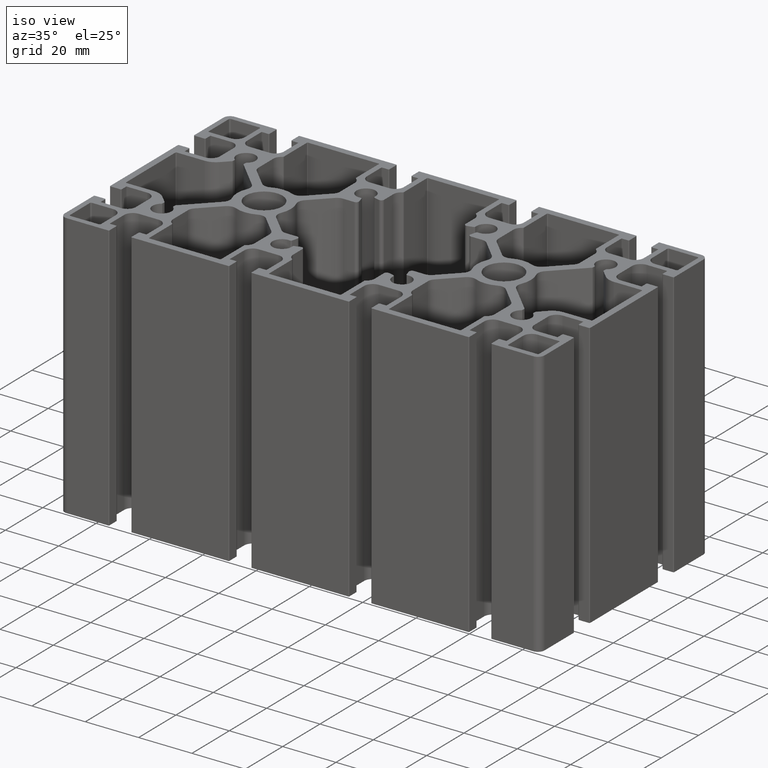
[diagram: clean part render]
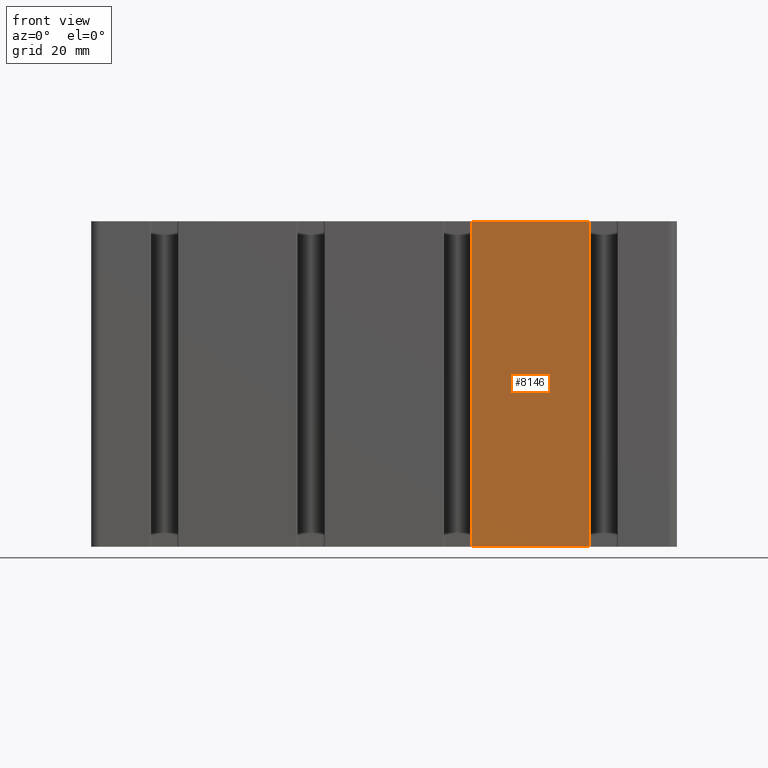
[diagram: tour spotlight — one face highlighted and labeled with its STEP entity id]
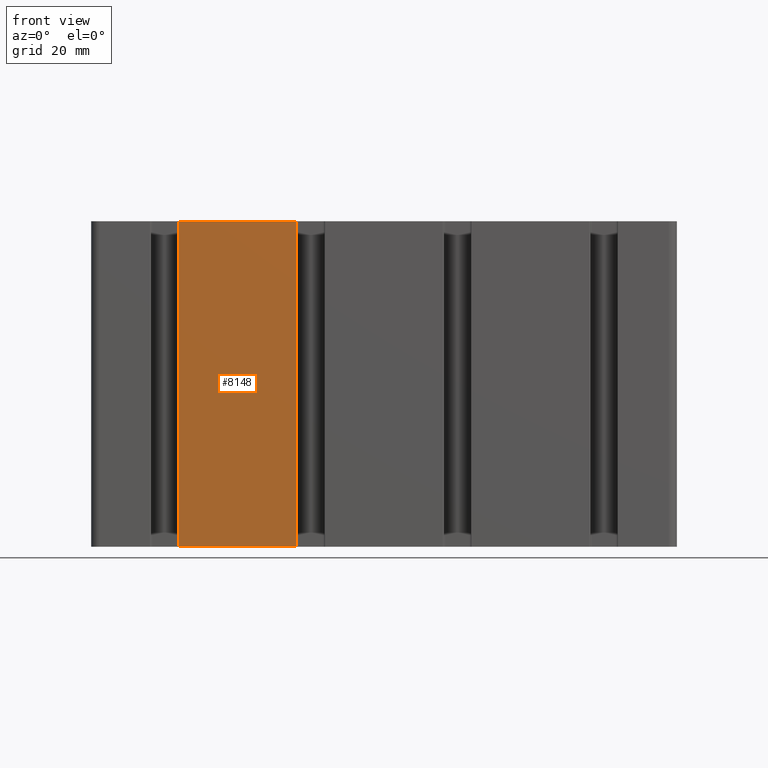
[diagram: tour spotlight — one face highlighted and labeled with its STEP entity id]
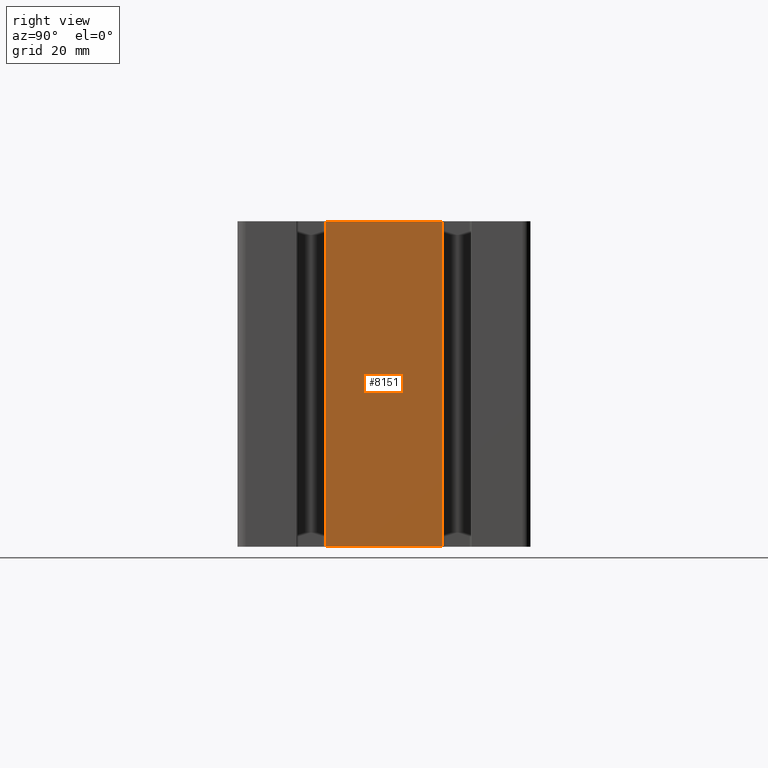
[diagram: tour spotlight — one face highlighted and labeled with its STEP entity id]
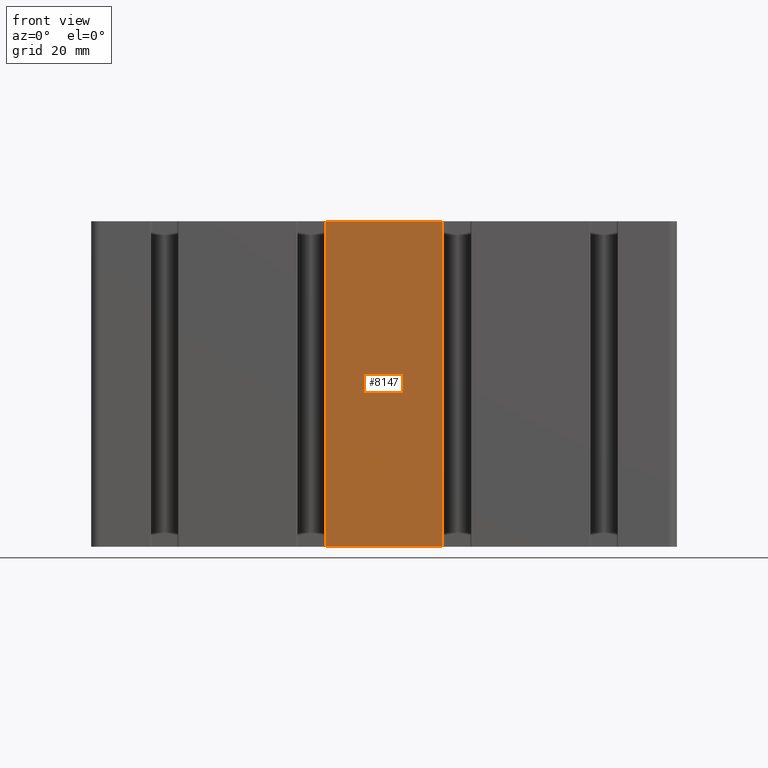
[diagram: tour spotlight — one face highlighted and labeled with its STEP entity id]
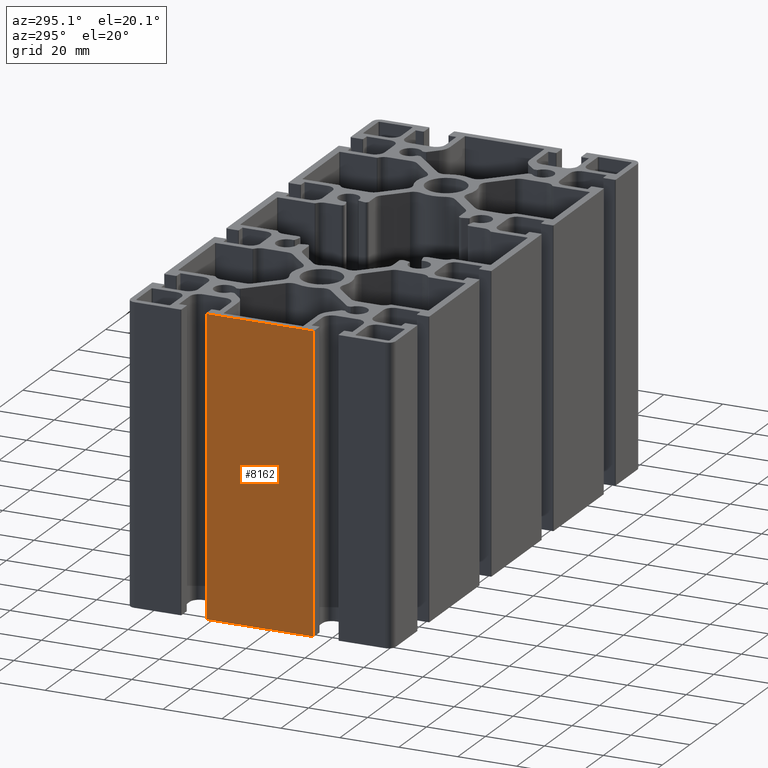
[diagram: tour spotlight — one face highlighted and labeled with its STEP entity id]
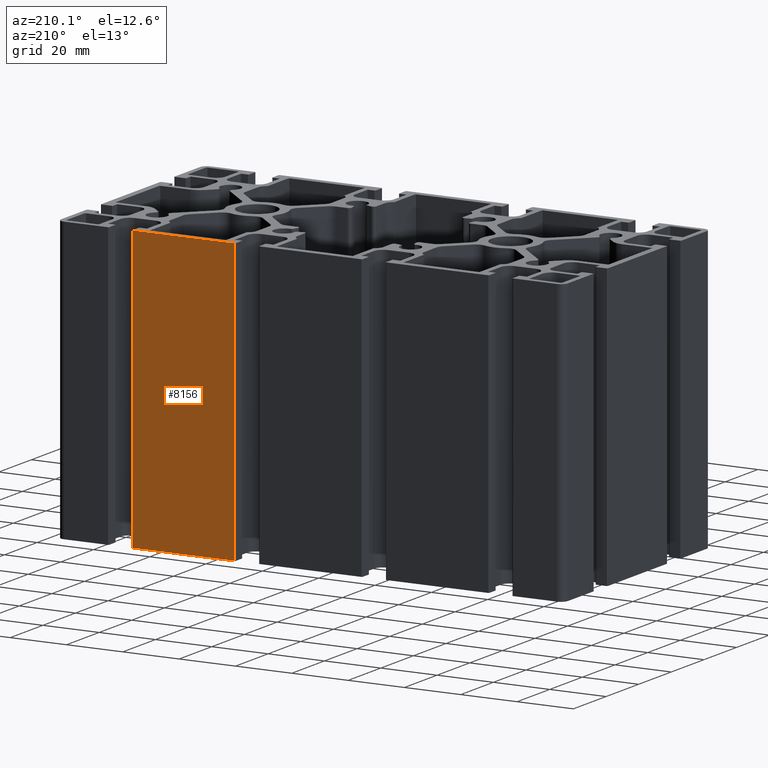
[diagram: tour spotlight — one face highlighted and labeled with its STEP entity id]
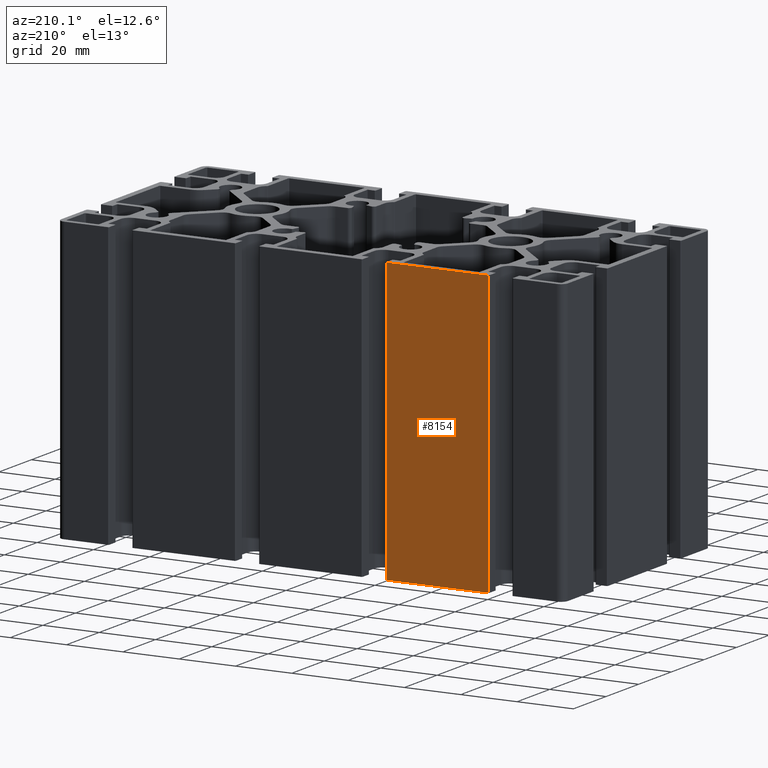
[diagram: tour spotlight — one face highlighted and labeled with its STEP entity id]
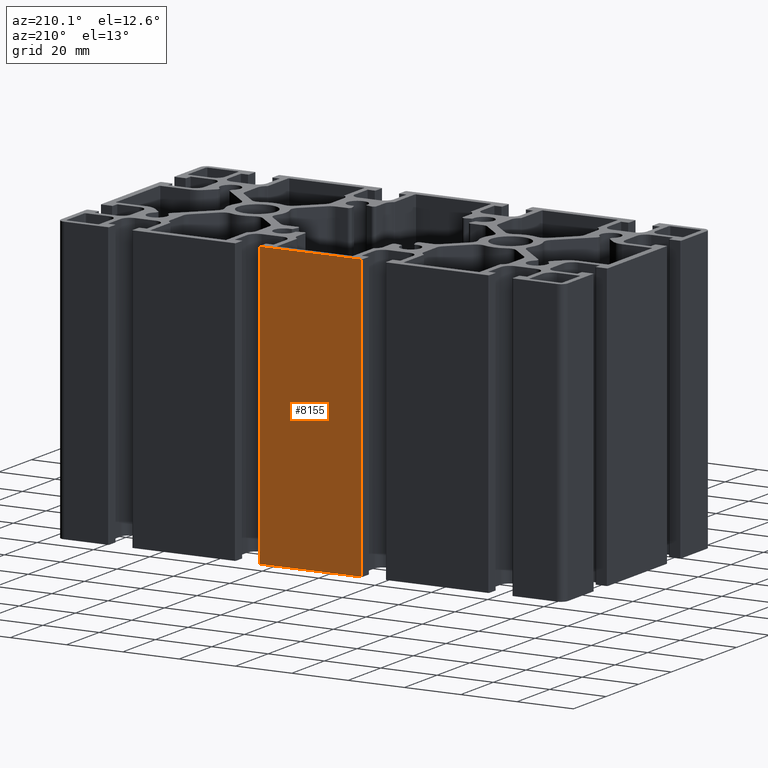
[diagram: tour spotlight — one face highlighted and labeled with its STEP entity id]
A machine part: a face-by-face anatomy tour. The part has 408 B-rep faces; the first image is the clean iso view, then the 8 largest visible faces are spotlighted one at a time (largest first), each with its STEP entity span.

Face 1 — front view, entity #8146. In plain terms, the highlighted planar face has unit normal (0, -1, 0).
Definition (entity closure, byte-faithful):
#1072=FACE_OUTER_BOUND('',#1482,.T.);
#1482=EDGE_LOOP('',(#6677,#6678,#6679,#6680));
#1751=LINE('',#12178,#2539);
#1773=LINE('',#12238,#2561);
#2280=LINE('',#13825,#3068);
#2281=LINE('',#13826,#3069);
#2539=VECTOR('',#9721,100.);
#2561=VECTOR('',#9777,100.);
#3068=VECTOR('',#11374,36.1);
#3069=VECTOR('',#11375,36.1);
#3344=VERTEX_POINT('',#12172);
#3346=VERTEX_POINT('',#12176);
#3365=VERTEX_POINT('',#12234);
#3367=VERTEX_POINT('',#12237);
#4269=EDGE_CURVE('',#3344,#3346,#1751,.T.);
#4298=EDGE_CURVE('',#3365,#3367,#1773,.T.);
#5088=EDGE_CURVE('',#3367,#3346,#2280,.T.);
#5089=EDGE_CURVE('',#3365,#3344,#2281,.T.);
#6677=ORIENTED_EDGE('',*,*,#4269,.T.);
#6678=ORIENTED_EDGE('',*,*,#5088,.F.);
#6679=ORIENTED_EDGE('',*,*,#4298,.F.);
#6680=ORIENTED_EDGE('',*,*,#5089,.T.);
#7742=PLANE('',#8976);
#8146=ADVANCED_FACE('',(#1072),#7742,.T.);
#8976=AXIS2_PLACEMENT_3D('',#13824,#11372,#11373);
#9721=DIRECTION('',(0.,0.,-1.));
#9777=DIRECTION('',(0.,0.,-1.));
#11372=DIRECTION('center_axis',(0.,-1.,0.));
#11373=DIRECTION('ref_axis',(1.,0.,0.));
#11374=DIRECTION('',(-1.,0.,0.));
#11375=DIRECTION('',(-1.,0.,0.));
#12172=CARTESIAN_POINT('',(26.9500000000001,-45.,100.));
#12176=CARTESIAN_POINT('',(26.9500000000001,-45.,0.));
#12178=CARTESIAN_POINT('',(26.95,-45.,0.));
#12234=CARTESIAN_POINT('',(63.0500000000001,-44.9999999999999,100.));
#12237=CARTESIAN_POINT('',(63.0500000000001,-44.9999999999999,0.));
#12238=CARTESIAN_POINT('',(63.05,-45.,0.));
#13824=CARTESIAN_POINT('Origin',(-87.5,-45.,0.));
#13825=CARTESIAN_POINT('',(-43.75,-45.,0.));
#13826=CARTESIAN_POINT('',(-43.75,-45.,100.));

Face 2 — front view, entity #8148. In plain terms, the highlighted planar face has unit normal (0, -1, 0).
Definition (entity closure, byte-faithful):
#1074=FACE_OUTER_BOUND('',#1484,.T.);
#1484=EDGE_LOOP('',(#6685,#6686,#6687,#6688));
#1695=LINE('',#12016,#2483);
#1717=LINE('',#12076,#2505);
#2284=LINE('',#13831,#3072);
#2285=LINE('',#13832,#3073);
#2483=VECTOR('',#9565,100.);
#2505=VECTOR('',#9621,100.);
#3072=VECTOR('',#11382,36.1000000000001);
#3073=VECTOR('',#11383,36.1000000000001);
#3288=VERTEX_POINT('',#12010);
#3290=VERTEX_POINT('',#12014);
#3309=VERTEX_POINT('',#12072);
#3311=VERTEX_POINT('',#12075);
#4189=EDGE_CURVE('',#3288,#3290,#1695,.T.);
#4218=EDGE_CURVE('',#3309,#3311,#1717,.T.);
#5092=EDGE_CURVE('',#3311,#3290,#2284,.T.);
#5093=EDGE_CURVE('',#3309,#3288,#2285,.T.);
#6685=ORIENTED_EDGE('',*,*,#4189,.T.);
#6686=ORIENTED_EDGE('',*,*,#5092,.F.);
#6687=ORIENTED_EDGE('',*,*,#4218,.F.);
#6688=ORIENTED_EDGE('',*,*,#5093,.T.);
#7744=PLANE('',#8978);
#8148=ADVANCED_FACE('',(#1074),#7744,.T.);
#8978=AXIS2_PLACEMENT_3D('',#13830,#11380,#11381);
#9565=DIRECTION('',(0.,0.,-1.));
#9621=DIRECTION('',(0.,0.,-1.));
#11380=DIRECTION('center_axis',(0.,-1.,0.));
#11381=DIRECTION('ref_axis',(1.,0.,0.));
#11382=DIRECTION('',(-1.,0.,0.));
#11383=DIRECTION('',(-1.,0.,0.));
#12010=CARTESIAN_POINT('',(-63.0500000000001,-45.,100.));
#12014=CARTESIAN_POINT('',(-63.0500000000001,-45.,0.));
#12016=CARTESIAN_POINT('',(-63.05,-45.,0.));
#12072=CARTESIAN_POINT('',(-26.9499999999999,-45.,100.));
#12075=CARTESIAN_POINT('',(-26.9499999999999,-45.,0.));
#12076=CARTESIAN_POINT('',(-26.95,-45.,0.));
#13830=CARTESIAN_POINT('Origin',(-87.5,-45.,0.));
#13831=CARTESIAN_POINT('',(-43.75,-45.,0.));
#13832=CARTESIAN_POINT('',(-43.75,-45.,100.));

Face 3 — right view, entity #8151. In plain terms, the highlighted planar face has unit normal (1, 0, 0).
Definition (entity closure, byte-faithful):
#1077=FACE_OUTER_BOUND('',#1487,.T.);
#1487=EDGE_LOOP('',(#6697,#6698,#6699,#6700));
#1807=LINE('',#12340,#2595);
#1829=LINE('',#12400,#2617);
#2292=LINE('',#13846,#3080);
#2293=LINE('',#13847,#3081);
#2595=VECTOR('',#9877,100.);
#2617=VECTOR('',#9933,100.);
#3080=VECTOR('',#11396,36.1);
#3081=VECTOR('',#11397,36.1);
#3400=VERTEX_POINT('',#12334);
#3402=VERTEX_POINT('',#12338);
#3421=VERTEX_POINT('',#12396);
#3423=VERTEX_POINT('',#12399);
#4349=EDGE_CURVE('',#3400,#3402,#1807,.T.);
#4378=EDGE_CURVE('',#3421,#3423,#1829,.T.);
#5100=EDGE_CURVE('',#3423,#3402,#2292,.T.);
#5101=EDGE_CURVE('',#3421,#3400,#2293,.T.);
#6697=ORIENTED_EDGE('',*,*,#4349,.T.);
#6698=ORIENTED_EDGE('',*,*,#5100,.F.);
#6699=ORIENTED_EDGE('',*,*,#4378,.F.);
#6700=ORIENTED_EDGE('',*,*,#5101,.T.);
#7747=PLANE('',#8981);
#8151=ADVANCED_FACE('',(#1077),#7747,.T.);
#8981=AXIS2_PLACEMENT_3D('',#13845,#11394,#11395);
#9877=DIRECTION('',(0.,0.,-1.));
#9933=DIRECTION('',(0.,0.,-1.));
#11394=DIRECTION('center_axis',(1.,0.,0.));
#11395=DIRECTION('ref_axis',(0.,1.,0.));
#11396=DIRECTION('',(0.,-1.,0.));
#11397=DIRECTION('',(0.,-1.,0.));
#12334=CARTESIAN_POINT('',(90.,-18.05,100.));
#12338=CARTESIAN_POINT('',(90.,-18.05,0.));
#12340=CARTESIAN_POINT('',(90.,-18.05,0.));
#12396=CARTESIAN_POINT('',(90.,18.05,100.));
#12399=CARTESIAN_POINT('',(90.,18.05,0.));
#12400=CARTESIAN_POINT('',(90.,18.05,0.));
#13845=CARTESIAN_POINT('Origin',(90.,-42.5,0.));
#13846=CARTESIAN_POINT('',(90.,-21.25,0.));
#13847=CARTESIAN_POINT('',(90.,-21.25,100.));

Face 4 — front view, entity #8147. In plain terms, the highlighted planar face has unit normal (0, -1, 0).
Definition (entity closure, byte-faithful):
#1073=FACE_OUTER_BOUND('',#1483,.T.);
#1483=EDGE_LOOP('',(#6681,#6682,#6683,#6684));
#1716=LINE('',#12070,#2504);
#1749=LINE('',#12168,#2537);
#2282=LINE('',#13828,#3070);
#2283=LINE('',#13829,#3071);
#2504=VECTOR('',#9616,100.);
#2537=VECTOR('',#9711,100.);
#3070=VECTOR('',#11378,36.0999999999999);
#3071=VECTOR('',#11379,36.0999999999999);
#3307=VERTEX_POINT('',#12066);
#3308=VERTEX_POINT('',#12068);
#3341=VERTEX_POINT('',#12165);
#3342=VERTEX_POINT('',#12167);
#4216=EDGE_CURVE('',#3307,#3308,#1716,.T.);
#4264=EDGE_CURVE('',#3341,#3342,#1749,.T.);
#5090=EDGE_CURVE('',#3342,#3308,#2282,.T.);
#5091=EDGE_CURVE('',#3341,#3307,#2283,.T.);
#6681=ORIENTED_EDGE('',*,*,#4216,.T.);
#6682=ORIENTED_EDGE('',*,*,#5090,.F.);
#6683=ORIENTED_EDGE('',*,*,#4264,.F.);
#6684=ORIENTED_EDGE('',*,*,#5091,.T.);
#7743=PLANE('',#8977);
#8147=ADVANCED_FACE('',(#1073),#7743,.T.);
#8977=AXIS2_PLACEMENT_3D('',#13827,#11376,#11377);
#9616=DIRECTION('',(0.,0.,-1.));
#9711=DIRECTION('',(0.,0.,-1.));
#11376=DIRECTION('center_axis',(0.,-1.,0.));
#11377=DIRECTION('ref_axis',(1.,0.,0.));
#11378=DIRECTION('',(-1.,0.,0.));
#11379=DIRECTION('',(-1.,0.,0.));
#12066=CARTESIAN_POINT('',(-18.0499999999999,-45.,100.));
#12068=CARTESIAN_POINT('',(-18.0499999999999,-45.,0.));
#12070=CARTESIAN_POINT('',(-18.05,-45.,0.));
#12165=CARTESIAN_POINT('',(18.0499999999999,-44.9999999999999,100.));
#12167=CARTESIAN_POINT('',(18.0499999999999,-44.9999999999999,0.));
#12168=CARTESIAN_POINT('',(18.05,-45.,0.));
#13827=CARTESIAN_POINT('Origin',(-87.5,-45.,0.));
#13828=CARTESIAN_POINT('',(-43.75,-45.,0.));
#13829=CARTESIAN_POINT('',(-43.75,-45.,100.));

Face 5 — auxiliary view, entity #8162. In plain terms, the highlighted planar face has unit normal (-1, 0, 0).
Definition (entity closure, byte-faithful):
#1088=FACE_OUTER_BOUND('',#1511,.T.);
#1511=EDGE_LOOP('',(#7143,#7144,#7145,#7146));
#1672=LINE('',#11944,#2460);
#1975=LINE('',#12826,#2763);
#2315=LINE('',#13892,#3103);
#2316=LINE('',#13896,#3104);
#2460=VECTOR('',#9494,100.);
#2763=VECTOR('',#10345,100.);
#3103=VECTOR('',#11445,36.1);
#3104=VECTOR('',#11452,36.1);
#3263=VERTEX_POINT('',#11940);
#3265=VERTEX_POINT('',#11943);
#3568=VERTEX_POINT('',#12820);
#3570=VERTEX_POINT('',#12824);
#4153=EDGE_CURVE('',#3263,#3265,#1672,.T.);
#4589=EDGE_CURVE('',#3568,#3570,#1975,.T.);
#5127=EDGE_CURVE('',#3263,#3568,#2315,.T.);
#5129=EDGE_CURVE('',#3265,#3570,#2316,.T.);
#7143=ORIENTED_EDGE('',*,*,#4153,.F.);
#7144=ORIENTED_EDGE('',*,*,#5127,.T.);
#7145=ORIENTED_EDGE('',*,*,#4589,.T.);
#7146=ORIENTED_EDGE('',*,*,#5129,.F.);
#7757=PLANE('',#8997);
#8162=ADVANCED_FACE('',(#1088),#7757,.T.);
#8997=AXIS2_PLACEMENT_3D('',#13895,#11450,#11451);
#9494=DIRECTION('',(0.,0.,-1.));
#10345=DIRECTION('',(0.,0.,-1.));
#11445=DIRECTION('',(0.,1.,0.));
#11450=DIRECTION('center_axis',(-1.,0.,0.));
#11451=DIRECTION('ref_axis',(0.,-1.,0.));
#11452=DIRECTION('',(0.,1.,0.));
#11940=CARTESIAN_POINT('',(-89.9999999999999,-18.05,100.));
#11943=CARTESIAN_POINT('',(-89.9999999999999,-18.05,0.));
#11944=CARTESIAN_POINT('',(-90.,-18.05,0.));
#12820=CARTESIAN_POINT('',(-90.,18.05,100.));
#12824=CARTESIAN_POINT('',(-90.,18.05,0.));
#12826=CARTESIAN_POINT('',(-90.,18.05,0.));
#13892=CARTESIAN_POINT('',(-90.,21.25,100.));
#13895=CARTESIAN_POINT('Origin',(-90.,42.5,0.));
#13896=CARTESIAN_POINT('',(-90.,21.25,0.));

Face 6 — auxiliary view, entity #8156. In plain terms, the highlighted planar face has unit normal (0, 1, 0).
Definition (entity closure, byte-faithful):
#1082=FACE_OUTER_BOUND('',#1492,.T.);
#1492=EDGE_LOOP('',(#6717,#6718,#6719,#6720));
#1863=LINE('',#12502,#2651);
#1885=LINE('',#12562,#2673);
#2304=LINE('',#13867,#3092);
#2305=LINE('',#13868,#3093);
#2651=VECTOR('',#10033,100.);
#2673=VECTOR('',#10089,100.);
#3092=VECTOR('',#11418,36.1);
#3093=VECTOR('',#11419,36.1);
#3456=VERTEX_POINT('',#12496);
#3458=VERTEX_POINT('',#12500);
#3477=VERTEX_POINT('',#12558);
#3479=VERTEX_POINT('',#12561);
#4429=EDGE_CURVE('',#3456,#3458,#1863,.T.);
#4458=EDGE_CURVE('',#3477,#3479,#1885,.T.);
#5112=EDGE_CURVE('',#3479,#3458,#2304,.T.);
#5113=EDGE_CURVE('',#3477,#3456,#2305,.T.);
#6717=ORIENTED_EDGE('',*,*,#4429,.T.);
#6718=ORIENTED_EDGE('',*,*,#5112,.F.);
#6719=ORIENTED_EDGE('',*,*,#4458,.F.);
#6720=ORIENTED_EDGE('',*,*,#5113,.T.);
#7752=PLANE('',#8986);
#8156=ADVANCED_FACE('',(#1082),#7752,.T.);
#8986=AXIS2_PLACEMENT_3D('',#13866,#11416,#11417);
#10033=DIRECTION('',(0.,0.,-1.));
#10089=DIRECTION('',(0.,0.,-1.));
#11416=DIRECTION('center_axis',(0.,1.,0.));
#11417=DIRECTION('ref_axis',(-1.,0.,0.));
#11418=DIRECTION('',(1.,0.,0.));
#11419=DIRECTION('',(1.,0.,0.));
#12496=CARTESIAN_POINT('',(63.0500000000001,45.,100.));
#12500=CARTESIAN_POINT('',(63.0500000000001,45.,0.));
#12502=CARTESIAN_POINT('',(63.05,45.,0.));
#12558=CARTESIAN_POINT('',(26.9500000000001,45.,100.));
#12561=CARTESIAN_POINT('',(26.9500000000001,45.,0.));
#12562=CARTESIAN_POINT('',(26.95,45.,0.));
#13866=CARTESIAN_POINT('Origin',(87.5,45.,0.));
#13867=CARTESIAN_POINT('',(43.75,45.,0.));
#13868=CARTESIAN_POINT('',(43.75,45.,100.));

Face 7 — auxiliary view, entity #8154. In plain terms, the highlighted planar face has unit normal (0, 1, 0).
Definition (entity closure, byte-faithful):
#1080=FACE_OUTER_BOUND('',#1490,.T.);
#1490=EDGE_LOOP('',(#6709,#6710,#6711,#6712));
#1919=LINE('',#12664,#2707);
#1941=LINE('',#12724,#2729);
#2300=LINE('',#13861,#3088);
#2301=LINE('',#13862,#3089);
#2707=VECTOR('',#10189,100.);
#2729=VECTOR('',#10245,100.);
#3088=VECTOR('',#11410,36.1000000000001);
#3089=VECTOR('',#11411,36.1000000000001);
#3512=VERTEX_POINT('',#12658);
#3514=VERTEX_POINT('',#12662);
#3533=VERTEX_POINT('',#12720);
#3535=VERTEX_POINT('',#12723);
#4509=EDGE_CURVE('',#3512,#3514,#1919,.T.);
#4538=EDGE_CURVE('',#3533,#3535,#1941,.T.);
#5108=EDGE_CURVE('',#3535,#3514,#2300,.T.);
#5109=EDGE_CURVE('',#3533,#3512,#2301,.T.);
#6709=ORIENTED_EDGE('',*,*,#4509,.T.);
#6710=ORIENTED_EDGE('',*,*,#5108,.F.);
#6711=ORIENTED_EDGE('',*,*,#4538,.F.);
#6712=ORIENTED_EDGE('',*,*,#5109,.T.);
#7750=PLANE('',#8984);
#8154=ADVANCED_FACE('',(#1080),#7750,.T.);
#8984=AXIS2_PLACEMENT_3D('',#13860,#11408,#11409);
#10189=DIRECTION('',(0.,0.,-1.));
#10245=DIRECTION('',(0.,0.,-1.));
#11408=DIRECTION('center_axis',(0.,1.,0.));
#11409=DIRECTION('ref_axis',(-1.,0.,0.));
#11410=DIRECTION('',(1.,0.,0.));
#11411=DIRECTION('',(1.,0.,0.));
#12658=CARTESIAN_POINT('',(-26.9499999999999,45.,100.));
#12662=CARTESIAN_POINT('',(-26.9499999999999,45.,0.));
#12664=CARTESIAN_POINT('',(-26.95,45.,0.));
#12720=CARTESIAN_POINT('',(-63.0500000000001,45.,100.));
#12723=CARTESIAN_POINT('',(-63.0500000000001,45.,0.));
#12724=CARTESIAN_POINT('',(-63.05,45.,0.));
#13860=CARTESIAN_POINT('Origin',(87.5,45.,0.));
#13861=CARTESIAN_POINT('',(43.75,45.,0.));
#13862=CARTESIAN_POINT('',(43.75,45.,100.));

Face 8 — auxiliary view, entity #8155. In plain terms, the highlighted planar face has unit normal (0, 1, 0).
Definition (entity closure, byte-faithful):
#1081=FACE_OUTER_BOUND('',#1491,.T.);
#1491=EDGE_LOOP('',(#6713,#6714,#6715,#6716));
#1884=LINE('',#12556,#2672);
#1917=LINE('',#12654,#2705);
#2302=LINE('',#13864,#3090);
#2303=LINE('',#13865,#3091);
#2672=VECTOR('',#10084,100.);
#2705=VECTOR('',#10179,100.);
#3090=VECTOR('',#11414,36.0999999999999);
#3091=VECTOR('',#11415,36.0999999999999);
#3475=VERTEX_POINT('',#12552);
#3476=VERTEX_POINT('',#12554);
#3509=VERTEX_POINT('',#12651);
#3510=VERTEX_POINT('',#12653);
#4456=EDGE_CURVE('',#3475,#3476,#1884,.T.);
#4504=EDGE_CURVE('',#3509,#3510,#1917,.T.);
#5110=EDGE_CURVE('',#3510,#3476,#2302,.T.);
#5111=EDGE_CURVE('',#3509,#3475,#2303,.T.);
#6713=ORIENTED_EDGE('',*,*,#4456,.T.);
#6714=ORIENTED_EDGE('',*,*,#5110,.F.);
#6715=ORIENTED_EDGE('',*,*,#4504,.F.);
#6716=ORIENTED_EDGE('',*,*,#5111,.T.);
#7751=PLANE('',#8985);
#8155=ADVANCED_FACE('',(#1081),#7751,.T.);
#8985=AXIS2_PLACEMENT_3D('',#13863,#11412,#11413);
#10084=DIRECTION('',(0.,0.,-1.));
#10179=DIRECTION('',(0.,0.,-1.));
#11412=DIRECTION('center_axis',(0.,1.,0.));
#11413=DIRECTION('ref_axis',(-1.,0.,0.));
#11414=DIRECTION('',(1.,0.,0.));
#11415=DIRECTION('',(1.,0.,0.));
#12552=CARTESIAN_POINT('',(18.0499999999999,45.,100.));
#12554=CARTESIAN_POINT('',(18.0499999999999,45.,0.));
#12556=CARTESIAN_POINT('',(18.05,45.,0.));
#12651=CARTESIAN_POINT('',(-18.0499999999999,45.,100.));
#12653=CARTESIAN_POINT('',(-18.0499999999999,45.,0.));
#12654=CARTESIAN_POINT('',(-18.05,45.,0.));
#13863=CARTESIAN_POINT('Origin',(87.5,45.,0.));
#13864=CARTESIAN_POINT('',(43.75,45.,0.));
#13865=CARTESIAN_POINT('',(43.75,45.,100.));